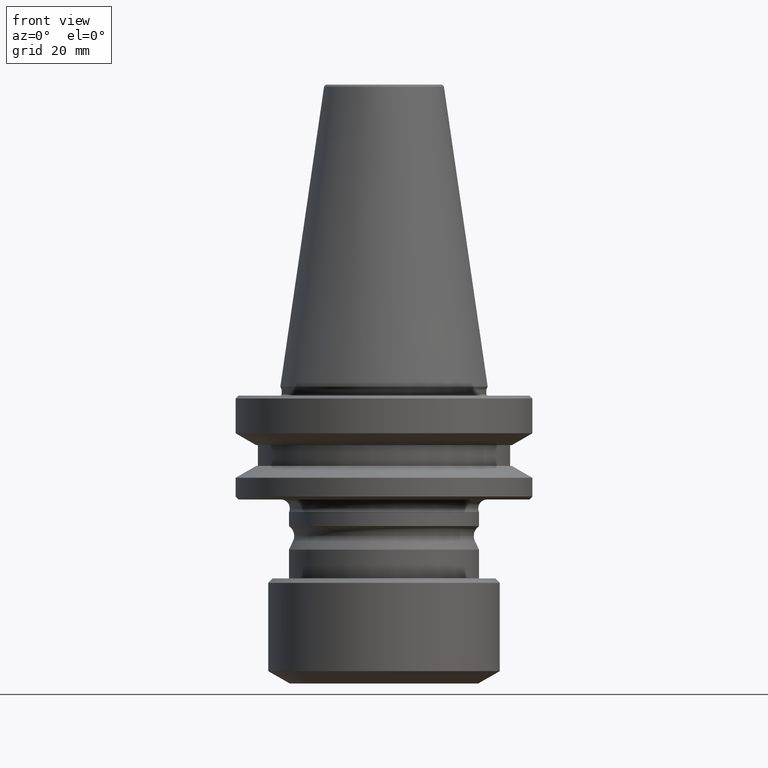
[diagram: clean part render]
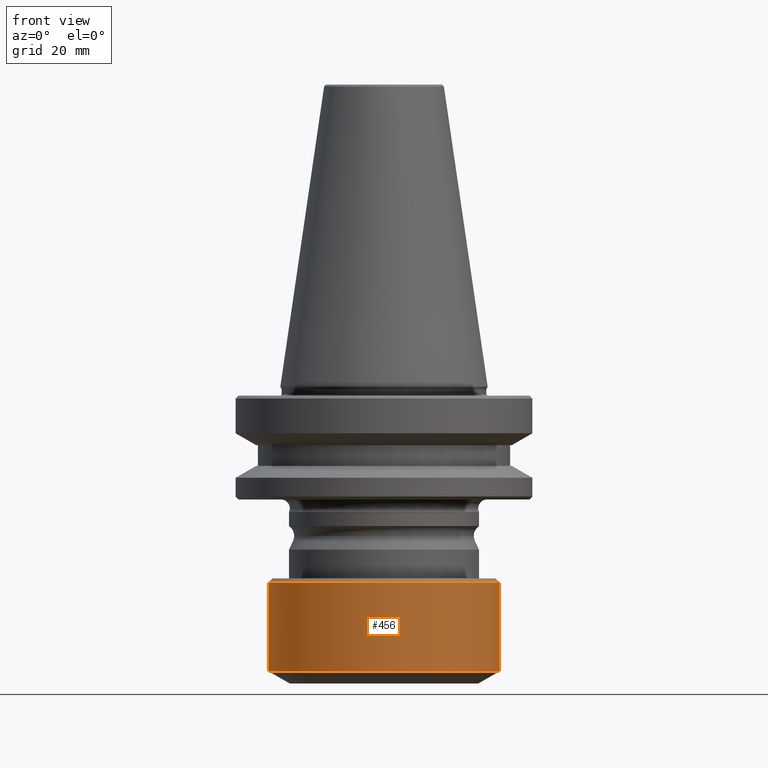
[diagram: same view with one face highlighted and labeled with its STEP entity id]
A machine part, front view. The second image highlights one B-rep face of the part: STEP entity #456.
In plain terms, the highlighted cylindrical surface (partial cylindrical patch) has radius 39 mm, axis along (-0, -0, 1).
Its self-contained STEP definition (entity closure, byte-faithful):
#21 = CARTESIAN_POINT ( 'NONE',  ( 39.00000000000000000, 0.0000000000000000000, 123.1507955798449200 ) ) ;
#126 = VERTEX_POINT ( 'NONE', #1296 ) ;
#134 = CIRCLE ( 'NONE', #549, 39.00000000000000000 ) ;
#175 = EDGE_CURVE ( 'NONE', #126, #300, #513, .T. ) ;
#222 = CARTESIAN_POINT ( 'NONE',  ( 39.00000000000000000, 0.0000000000000000000, -95.83924667456550100 ) ) ;
#255 = CYLINDRICAL_SURFACE ( 'NONE', #1014, 39.00000000000000000 ) ;
#300 = VERTEX_POINT ( 'NONE', #222 ) ;
#320 = DIRECTION ( 'NONE',  ( -0.0000000000000000000, -0.0000000000000000000, 1.000000000000000000 ) ) ;
#336 = CARTESIAN_POINT ( 'NONE',  ( -39.00000000000000000, 4.776122516674677900E-015, -66.09616861276548100 ) ) ;
#367 = CARTESIAN_POINT ( 'NONE',  ( 0.0000000000000000000, 0.0000000000000000000, -95.83924667456550100 ) ) ;
#456 = ADVANCED_FACE ( 'NONE', ( #1378 ), #255, .T. ) ;
#513 = CIRCLE ( 'NONE', #792, 39.00000000000000000 ) ;
#533 = CARTESIAN_POINT ( 'NONE',  ( 0.0000000000000000000, 0.0000000000000000000, -66.09616861276548100 ) ) ;
#549 = AXIS2_PLACEMENT_3D ( 'NONE', #533, #320, #1045 ) ;
#590 = VERTEX_POINT ( 'NONE', #1326 ) ;
#671 = VECTOR ( 'NONE', #1184, 1000.000000000000000 ) ;
#742 = ORIENTED_EDGE ( 'NONE', *, *, #1310, .F. ) ;
#747 = EDGE_CURVE ( 'NONE', #126, #1208, #1278, .T. ) ;
#792 = AXIS2_PLACEMENT_3D ( 'NONE', #367, #1106, #931 ) ;
#798 = DIRECTION ( 'NONE',  ( -0.0000000000000000000, -0.0000000000000000000, 1.000000000000000000 ) ) ;
#827 = DIRECTION ( 'NONE',  ( 1.000000000000000000, 0.0000000000000000000, 0.0000000000000000000 ) ) ;
#896 = CARTESIAN_POINT ( 'NONE',  ( -39.00000000000000000, 4.776122516674677900E-015, 123.1507955798449200 ) ) ;
#900 = EDGE_LOOP ( 'NONE', ( #952, #1317, #943, #742 ) ) ;
#931 = DIRECTION ( 'NONE',  ( 1.000000000000000000, 0.0000000000000000000, 0.0000000000000000000 ) ) ;
#943 = ORIENTED_EDGE ( 'NONE', *, *, #1059, .T. ) ;
#952 = ORIENTED_EDGE ( 'NONE', *, *, #747, .F. ) ;
#1014 = AXIS2_PLACEMENT_3D ( 'NONE', #1210, #1216, #827 ) ;
#1045 = DIRECTION ( 'NONE',  ( 1.000000000000000000, 0.0000000000000000000, 0.0000000000000000000 ) ) ;
#1059 = EDGE_CURVE ( 'NONE', #300, #590, #1228, .T. ) ;
#1106 = DIRECTION ( 'NONE',  ( -0.0000000000000000000, -0.0000000000000000000, 1.000000000000000000 ) ) ;
#1184 = DIRECTION ( 'NONE',  ( -0.0000000000000000000, -0.0000000000000000000, 1.000000000000000000 ) ) ;
#1208 = VERTEX_POINT ( 'NONE', #336 ) ;
#1210 = CARTESIAN_POINT ( 'NONE',  ( 0.0000000000000000000, 0.0000000000000000000, 123.1507955798449200 ) ) ;
#1216 = DIRECTION ( 'NONE',  ( -0.0000000000000000000, -0.0000000000000000000, 1.000000000000000000 ) ) ;
#1228 = LINE ( 'NONE', #21, #671 ) ;
#1278 = LINE ( 'NONE', #896, #1316 ) ;
#1296 = CARTESIAN_POINT ( 'NONE',  ( -39.00000000000000000, 4.776122516674677900E-015, -95.83924667456550100 ) ) ;
#1310 = EDGE_CURVE ( 'NONE', #1208, #590, #134, .T. ) ;
#1316 = VECTOR ( 'NONE', #798, 1000.000000000000000 ) ;
#1317 = ORIENTED_EDGE ( 'NONE', *, *, #175, .T. ) ;
#1326 = CARTESIAN_POINT ( 'NONE',  ( 39.00000000000000000, 0.0000000000000000000, -66.09616861276548100 ) ) ;
#1378 = FACE_OUTER_BOUND ( 'NONE', #900, .T. ) ;